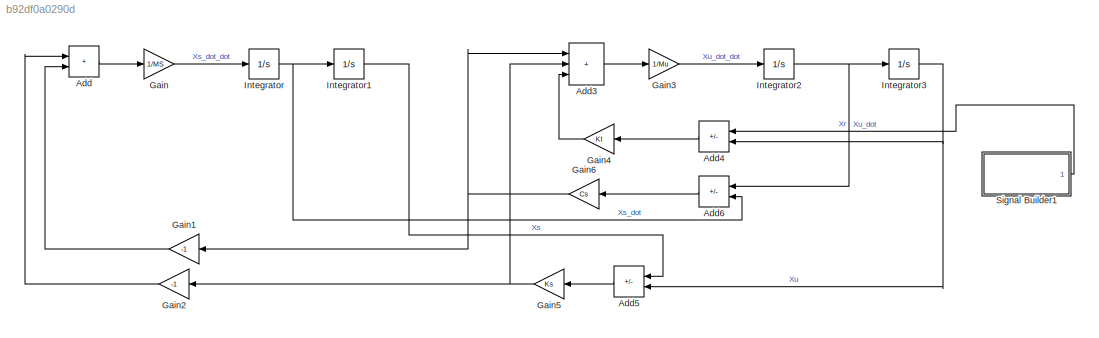
MODEL slx_b92df0a0290d
KIND model
CONFIG AbsTol = auto
CONFIG EnableMultiTasking = off
CONFIG FixedStep = auto
CONFIG MaxStep = 0.001
CONFIG MinStep = auto
CONFIG RelTol = 1e-3
CONFIG SampleTimeConstraint = Unconstrained
CONFIG Solver = VariableStepAuto
CONFIG SolverName = VariableStepAuto
CONFIG StartTime = 0.0
CONFIG StopTime = 50.0
BLOCK [Sum] Add
  IconShape = rectangular
  Ports = [2, 1]
BLOCK [Sum] Add3
  IconShape = rectangular
  Inputs = +++
  Ports = [3, 1]
BLOCK [Sum] Add4
  IconShape = rectangular
  Inputs = +-
  Ports = [2, 1]
BLOCK [Sum] Add5
  IconShape = rectangular
  Inputs = +-
  Ports = [2, 1]
BLOCK [Sum] Add6
  IconShape = rectangular
  Inputs = -+
  Ports = [2, 1]
BLOCK [Gain] Gain
  Gain = 1/MS
BLOCK [Gain] Gain1
  Gain = -1
BLOCK [Gain] Gain2
  Gain = -1
BLOCK [Gain] Gain3
  Gain = 1/Mu
BLOCK [Gain] Gain4
  Gain = Kt
BLOCK [Gain] Gain5
  Gain = Ks
BLOCK [Gain] Gain6
  Gain = Cs
BLOCK [Integrator] Integrator
  Ports = [1, 1]
BLOCK [Integrator] Integrator1
  Ports = [1, 1]
BLOCK [Integrator] Integrator2
  Ports = [1, 1]
BLOCK [Integrator] Integrator3
  Ports = [1, 1]
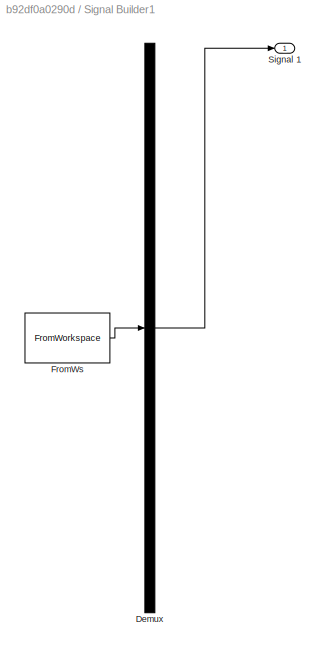
BLOCK [SubSystem] Signal Builder1
  ClipboardFcn = sigbuilder_block('clipboard');
  CloseFcn = sigbuilder_block('close');
  ContinueFcn = sigbuilder_block('continue');
  CopyFcn = sigbuilder_block('copy');
  DeleteFcn = sigbuilder_block('delete');
  LoadFcn = sigbuilder_block('load');
  MaskHideContents = on
  ModelCloseFcn = sigbuilder_block('modelClose');
  NameChangeFcn = sigbuilder_block('namechange');
  OpenFcn = sigbuilder_block('open',[437.6 199.2 550.4 400 ]);
  PauseFcn = sigbuilder_block('pause');
  Ports = [0, 1]
  PreSaveFcn = sigbuilder_block('preSave');
  RequestExecContextInheritance = off
  StartFcn = sigbuilder_block('start');
  StopFcn = sigbuilder_block('stop');
  Tag = STV Subsys
BLOCK [Demux] Signal Builder1/Demux
  DisplayOption = none
  Outputs = 1
  Ports = [1, 1]
  Tag = STV Demux
BLOCK [FromWorkspace] Signal Builder1/FromWs
  Tag = STV FromWs
  VariableName = tuvar
BLOCK [Outport] Signal Builder1/Signal 1
  Tag = STV Outport
LINE Add3:1 -> Gain3:1
LINE Add4:1 -> Gain4:1
LINE Add5:1 -> Gain5:1
LINE Add6:1 -> Gain6:1
LINE Add:1 -> Gain:1
LINE Gain1:1 -> Add:2
LINE Gain2:1 -> Add:1
LINE Gain3:1 -> Integrator2:1
LINE Gain4:1 -> Add3:3
NET Gain5:1 -> Add3:2, Gain2:1
NET Gain6:1 -> Add3:1, Gain1:1
LINE Gain:1 -> Integrator:1
LINE Integrator1:1 -> Add5:1
NET Integrator2:1 -> Add6:1, Integrator3:1
NET Integrator3:1 -> Add4:2, Add5:2
NET Integrator:1 -> Add6:2, Integrator1:1
LINE Signal Builder1:1 -> Add4:1
note: NET lines group one-source signal fan-out (src -> all destinations, sorted); 1:1 wires keep LINE
